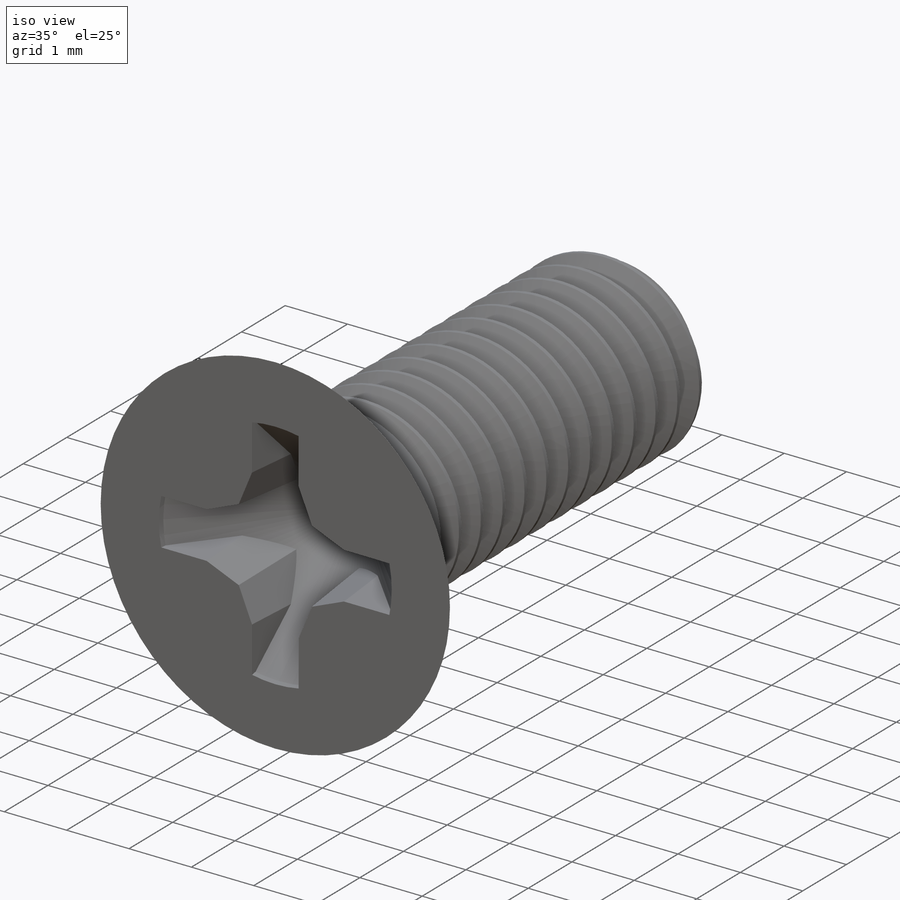
[diagram: iso view]
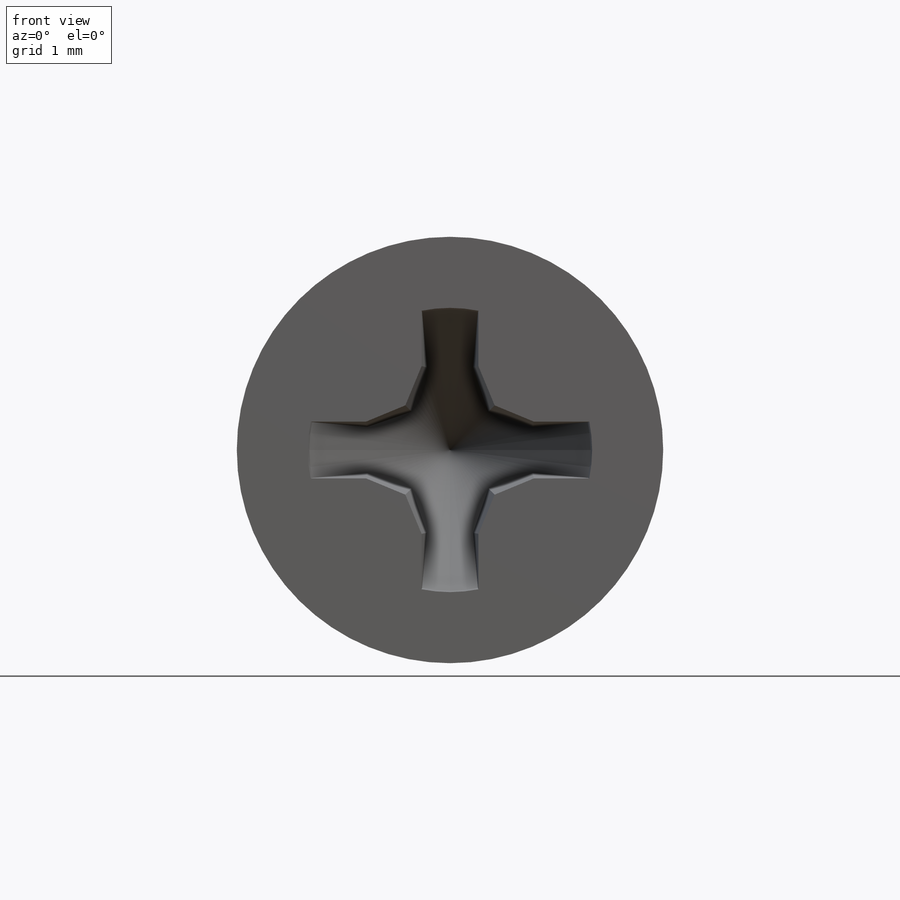
[diagram: front view]
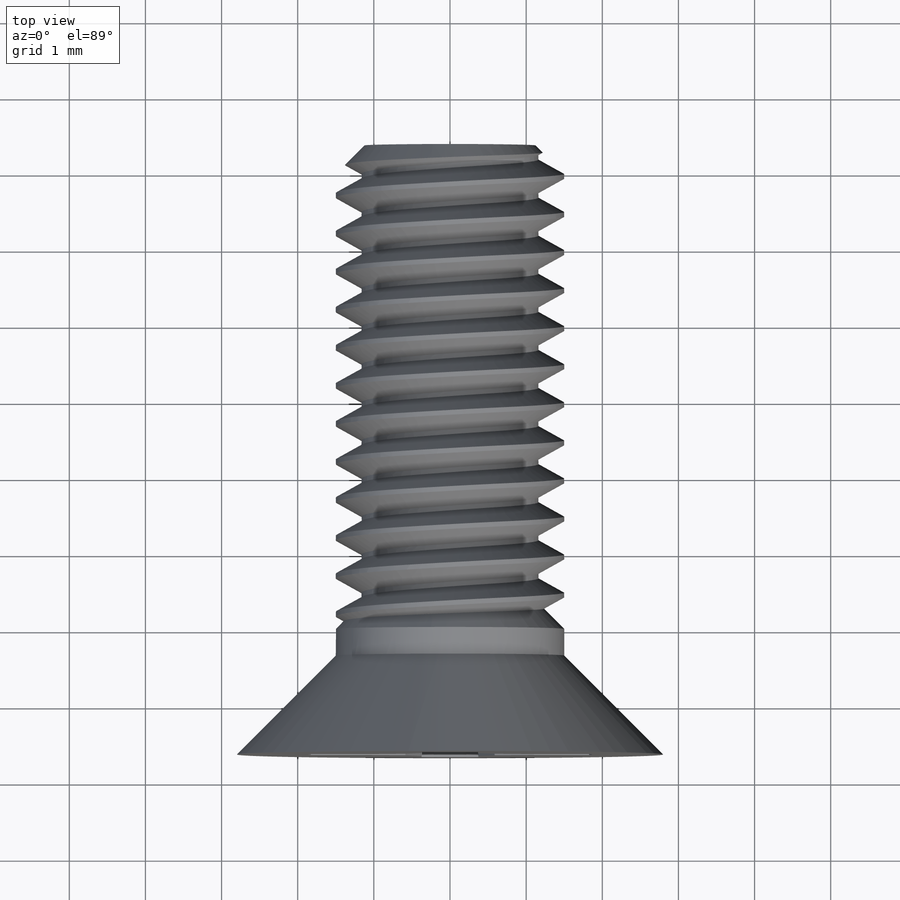
[diagram: top view]
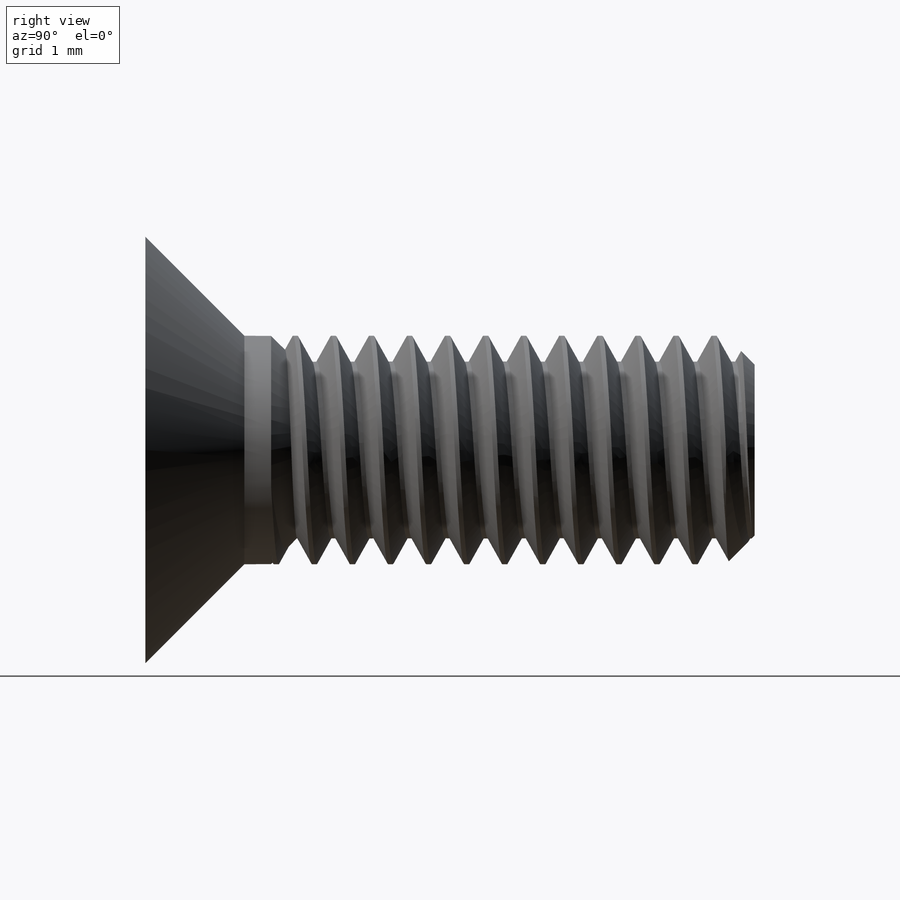
[diagram: right view]
SOLIDWORKS PART (.sldprt)
format: sldprt  version: not decoded by parser v0  size: 1,004,032 bytes
history: native  units: mm
features: sketch x12, extrude x4, cut_revolve x2, pattern_circular x2, material x1, revolve x1, helix x1, sweep x1, plane x1, cut_extrude x1 (+15 scaffold rows collapsed; 2 parser-record rows omitted)
feature tree (43):
  scaffold x15  (default folders/planes/origin — collapsed)
  material  "Material <not specified>"
  sketch  "Sketch1"  dims[Washer OD=8.3312mm Head Dia=5.6mm Hex=6.35mm]
  extrude  "Extrude3"  Depth=1.65mm Head Ht=1.65mm
  sketch  "Sketch4"  dims[c1.Screw Dia=9.525mm c1.Screw Length=12.7mm c1.Drill Length=~7.14375mm c1.D1=~1.417672mm c2.D1=45.0deg c2.Body Length=44.958mm c2.Screw Length=12.7mm c3.Screw Length=25.4mm c3.D1=90.0deg c4.Screw Length=50.8mm c4.Length=~39.600133mm c4.dia=3.0mm c4.length=50.8mm c5.length=6.35mm c6.length=8.0mm]
  revolve  "Revolve1"  Angle=360deg
  sketch  "Sketch11"  dims[c1.D1=0.254mm c1.D2=~1.642533mm c1.D3=~1.947333mm c2.D2=~1.66218mm c3.D2=5.0deg c3.D1=~3.294374mm c4.D1=90.0deg]
  cut_revolve  "Cut-Revolve3"  Angle=360deg
  sketch  "Sketch13"  dims[D1=0.0mm]
  helix  "Helix/Spiral1"  Pitch=8mm
  sketch  "Sketch14"  dims[c1.D1=0.0625mm c1.D2=~2.089547mm c2.D2=58.0deg c2.D3=0.25mm]
  sweep  "Cut-Sweep1"
  sketch  "Sketch19"  dims[D1=0.375mm]
  cut_revolve  "Cut-Revolve4"  Angle=360deg
  parser-record x2  (decoder bookkeeping rows leaked as tree rows — omitted from the tree; the rows remain in map.json)
  sketch  "Sketch28"
  extrude  "Extrude10"  [1 undecoded]
  plane  "Plane1"  Offset=38.1mm
  sketch  "Sketch22"
  sketch  "Sketch29"
  extrude  "Extrude11"  [1 undecoded]
  sketch  "Sketch26"  dims[D1=1.5mm]
  extrude  "Extrude8"  [1 undecoded]
  sketch  "Sketch12"  dims[c1.Cross Recess Dia=4.064mm c1.Phillips Dia=~3.733333mm c1.Cross recess Width=0.7112mm c1.Phillips Width=0.7112mm c2.Phillips Width=~0.746667mm c2.D1=~0.933333mm]
  cut_extrude  "Cut-Extrude3"  Depth=0.622222mm Phillips Depth=0.622222mm
  pattern_circular  "CirPattern1"  Count=4 Angle=360deg
  pattern_circular  "Draft2"  Angle=5deg  [1 undecoded]
  sketch  "Sketch18"
decode coverage: 16 of 24 modeling features carry decoded parameters
note: ~ marks probable driven/reference dimensions
note: 4 parameter values undecoded
summary: no parameter record found for 3 features
note: suppression state not decoded; provenance and decode notes live in map.json
